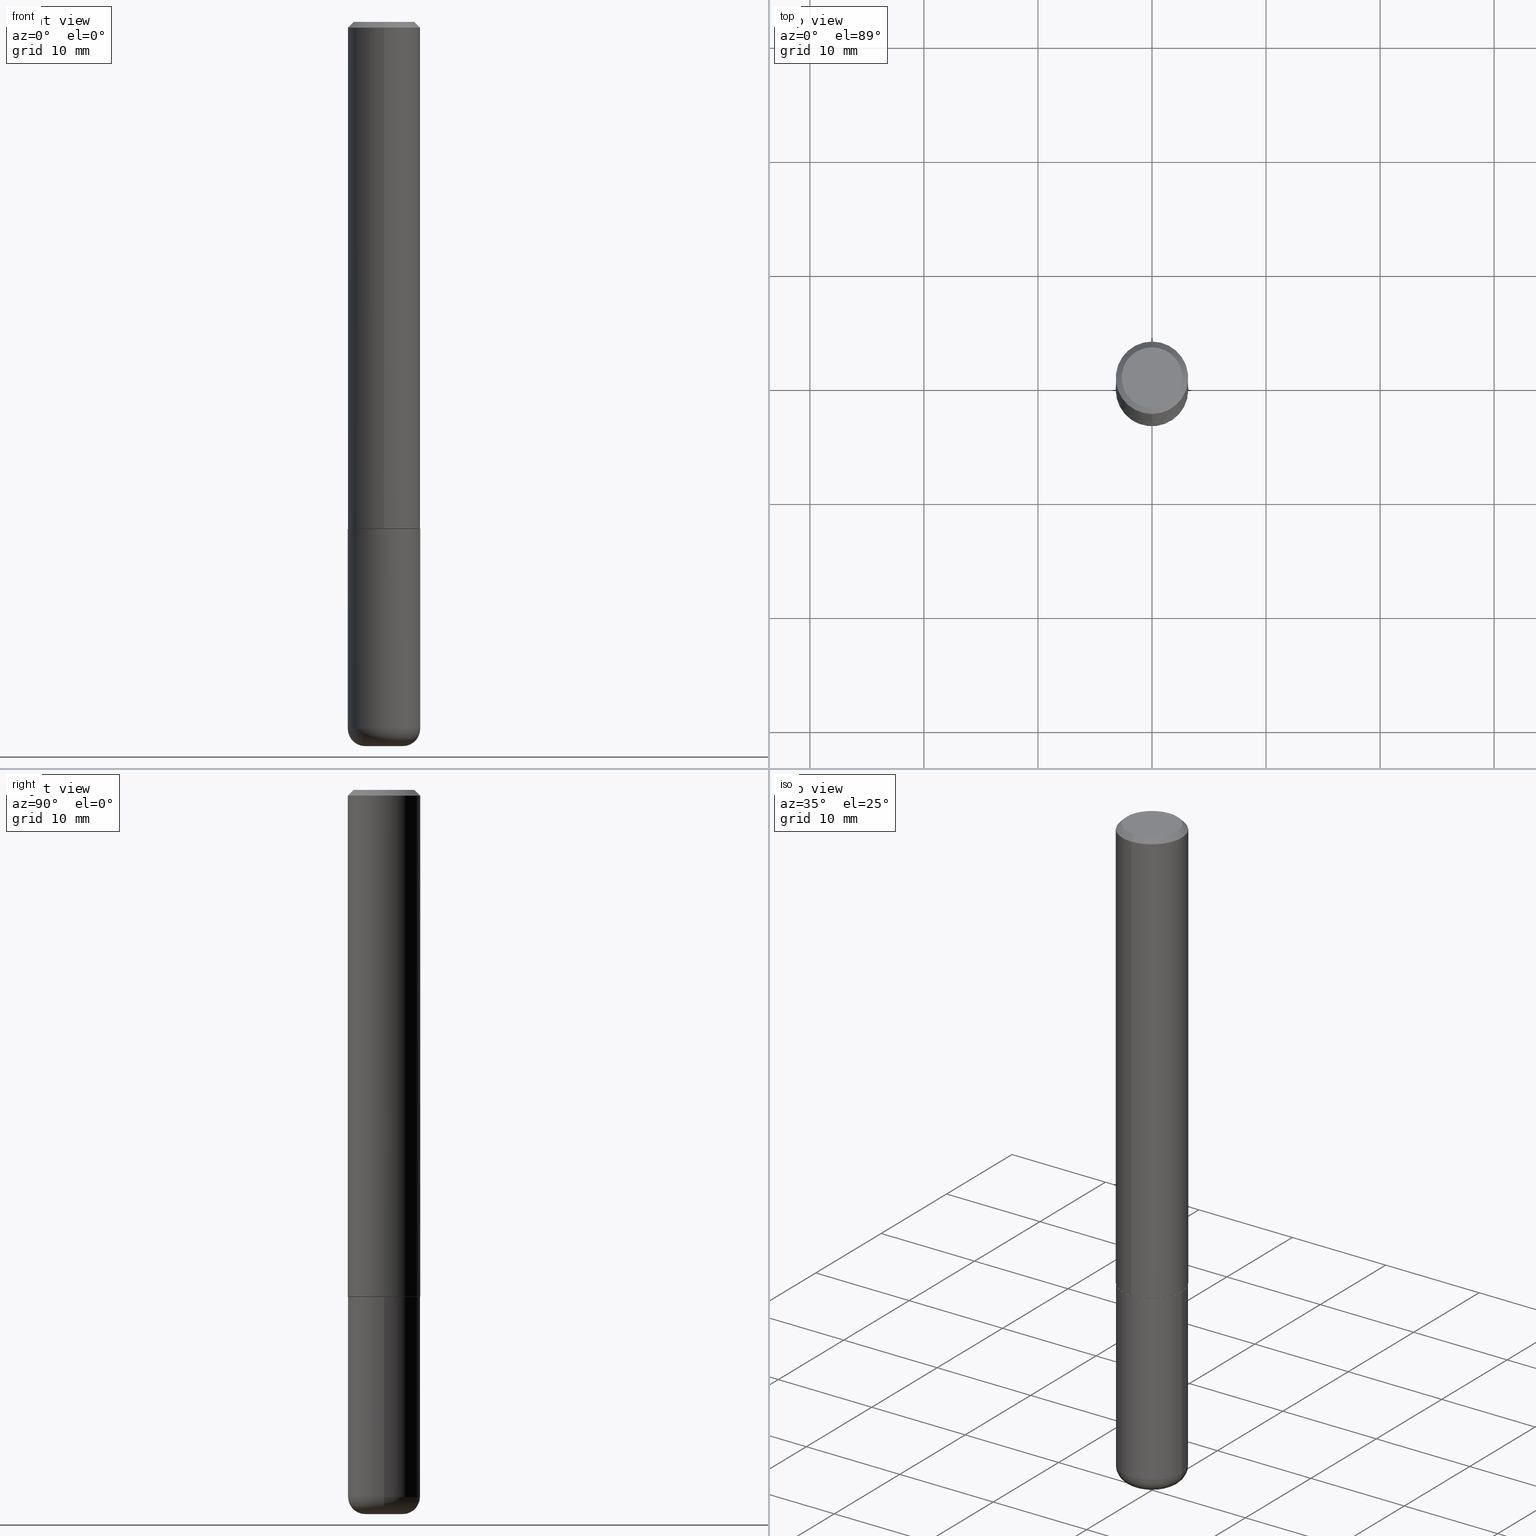
[diagram: canonical four-view strip — front | top / right | iso, engineering-drawing reading convention]
A machine part, canonical four-view strip (front | top / right | iso — engineering-drawing reading convention). The complete STEP part file that produces these views, byte-faithful:
ISO-10303-21;
HEADER;
FILE_DESCRIPTION (( 'STEP AP203' ),
    '1' );
FILE_NAME ('37439.STEP',
    '2024-03-02T01:27:23',
    ( '' ),
    ( '' ),
    'SwSTEP 2.0',
    'SolidWorks 2023',
    '' );
FILE_SCHEMA (( 'CONFIG_CONTROL_DESIGN' ));
ENDSEC;

DATA;
#1 = CC_DESIGN_SECURITY_CLASSIFICATION ( #166, ( #311 ) ) ;
#2 = APPROVAL_DATE_TIME ( #203, #232 ) ;
#3 = EDGE_LOOP ( 'NONE', ( #90, #101 ) ) ;
#4 = CARTESIAN_POINT ( 'NONE',  ( 8.728703347107837333E-16, 0.1249999999999999306, -0.02000000000000046185 ) ) ;
#5 = ORIENTED_EDGE ( 'NONE', *, *, #416, .F. ) ;
#6 = AXIS2_PLACEMENT_3D ( 'NONE', #208, #298, #14 ) ;
#7 = DESIGN_CONTEXT ( 'detailed design', #227, 'design' ) ;
#8 = ORIENTED_EDGE ( 'NONE', *, *, #204, .F. ) ;
#9 = CC_DESIGN_DATE_AND_TIME_ASSIGNMENT ( #163, #389, ( #397 ) ) ;
#10 = EDGE_LOOP ( 'NONE', ( #175, #266, #393, #371 ) ) ;
#11 = CYLINDRICAL_SURFACE ( 'NONE', #118, 0.1250000000000000000 ) ;
#12 = DATE_TIME_ROLE ( 'classification_date' ) ;
#13 = CLOSED_SHELL ( 'NONE', ( #137, #352, #299, #178, #286, #368 ) ) ;
#14 = DIRECTION ( 'NONE',  ( 1.000000000000000000, -6.982962677686266711E-15, 4.876176775795935793E-29 ) ) ;
#15 = EDGE_CURVE ( 'NONE', #398, #26, #152, .T. ) ;
#16 = DIRECTION ( 'NONE',  ( -2.444769625519019670E-29, 3.492482605351917386E-15, 1.000000000000000000 ) ) ;
#17 = CARTESIAN_POINT ( 'NONE',  ( 8.881784197001479121E-16, 0.1249999999999941019, -1.749000000000000332 ) ) ;
#18 = ORIENTED_EDGE ( 'NONE', *, *, #115, .F. ) ;
#19 = DIRECTION ( 'NONE',  ( 2.444769625519019109E-29, -3.492482605351917386E-15, -1.000000000000000000 ) ) ;
#20 = CIRCLE ( 'NONE', #353, 0.1239999999999999991 ) ;
#21 = CARTESIAN_POINT ( 'NONE',  ( 4.889539251038044560E-31, -6.984965210703842315E-17, -0.02000000000000002470 ) ) ;
#22 = DIRECTION ( 'NONE',  ( 1.000000000000000000, -6.982962677686262766E-15, 0.000000000000000000 ) ) ;
#23 = CARTESIAN_POINT ( 'NONE',  ( 6.113672015462842613E-29, -8.728703347107864943E-15, -2.500000000000000000 ) ) ;
#24 = CYLINDRICAL_SURFACE ( 'NONE', #205, 0.1250000000000001110 ) ;
#25 = CARTESIAN_POINT ( 'NONE',  ( 4.279570410823989044E-29, -6.110092342975505460E-15, -1.750000000000000222 ) ) ;
#26 = VERTEX_POINT ( 'NONE', #93 ) ;
#27 = AXIS2_PLACEMENT_3D ( 'NONE', #289, #122, #192 ) ;
#28 = DIRECTION ( 'NONE',  ( 2.444769625519019670E-29, -3.492482605351917386E-15, -1.000000000000000000 ) ) ;
#29 = COORDINATED_UNIVERSAL_TIME_OFFSET ( 5, 0, .BEHIND. ) ;
#30 = UNCERTAINTY_MEASURE_WITH_UNIT (LENGTH_MEASURE( 1.000000000000000082E-05 ), #349, 'distance_accuracy_value', 'NONE');
#31 = DIRECTION ( 'NONE',  ( -1.000000000000000000, 6.982962677686265922E-15, -4.876176775795935793E-29 ) ) ;
#32 = EDGE_CURVE ( 'NONE', #219, #47, #387, .T. ) ;
#33 = ORIENTED_EDGE ( 'NONE', *, *, #204, .T. ) ;
#34 = CALENDAR_DATE ( 2024, 1, 3 ) ;
#35 = DIRECTION ( 'NONE',  ( 5.024295867788490741E-15, 0.7071067811866103003, 0.7071067811864847341 ) ) ;
#36 = EDGE_LOOP ( 'NONE', ( #300, #112, #126, #18 ) ) ;
#37 = ADVANCED_FACE ( 'NONE', ( #225 ), #255, .F. ) ;
#38 = ORIENTED_EDGE ( 'NONE', *, *, #71, .T. ) ;
#39 = TOROIDAL_SURFACE ( 'NONE', #277, 0.06500000000000000222, 0.05999999999999995615 ) ;
#40 = EDGE_LOOP ( 'NONE', ( #141, #324, #123, #69 ) ) ;
#41 = CC_DESIGN_PERSON_AND_ORGANIZATION_ASSIGNMENT ( #189, #88, ( #239 ) ) ;
#42 = DIRECTION ( 'NONE',  ( -2.444769625519019670E-29, 3.492482605351917386E-15, 1.000000000000000000 ) ) ;
#43 = VECTOR ( 'NONE', #400, 39.37007874015748143 ) ;
#44 = CARTESIAN_POINT ( 'NONE',  ( 4.278346844658283722E-29, -6.111844559365854735E-15, -1.750000000000000000 ) ) ;
#45 = APPROVAL_PERSON_ORGANIZATION ( #146, #100, #131 ) ;
#46 = CARTESIAN_POINT ( 'NONE',  ( 0.1250000000000000000, -8.728703347107833388E-16, 6.095220969744919741E-30 ) ) ;
#47 = VERTEX_POINT ( 'NONE', #57 ) ;
#48 = EDGE_CURVE ( 'NONE', #296, #106, #80, .T. ) ;
#49 = CARTESIAN_POINT ( 'NONE',  ( 0.06500000000000000222, -8.973107040826881753E-15, -2.440000000000000391 ) ) ;
#50 = DIRECTION ( 'NONE',  ( 1.000000000000000000, -6.982962677686262766E-15, 0.000000000000000000 ) ) ;
#51 = DIMENSIONAL_EXPONENTS ( 1.000000000000000000, 0.000000000000000000, 0.000000000000000000, 0.000000000000000000, 0.000000000000000000, 0.000000000000000000, 0.000000000000000000 ) ;
#52 = PLANE ( 'NONE',  #330 ) ;
#53 = AXIS2_PLACEMENT_3D ( 'NONE', #342, #181, #77 ) ;
#54 = AXIS2_PLACEMENT_3D ( 'NONE', #258, #384, #230 ) ;
#55 = CARTESIAN_POINT ( 'NONE',  ( 4.889539251038044560E-31, -6.984965210703842315E-17, -0.02000000000000002470 ) ) ;
#56 = COORDINATED_UNIVERSAL_TIME_OFFSET ( 5, 0, .BEHIND. ) ;
#57 = CARTESIAN_POINT ( 'NONE',  ( 0.1249999999999999861, -9.392084801488058387E-15, -2.440000000000000391 ) ) ;
#58 = EDGE_CURVE ( 'NONE', #394, #263, #174, .T. ) ;
#59 = ORIENTED_EDGE ( 'NONE', *, *, #84, .T. ) ;
#60 = DIRECTION ( 'NONE',  ( 2.438088387897960049E-29, -3.491481338843145188E-15, -1.000000000000000000 ) ) ;
#61 = AXIS2_PLACEMENT_3D ( 'NONE', #116, #19, #153 ) ;
#62 = CALENDAR_DATE ( 2024, 1, 3 ) ;
#63 = EDGE_CURVE ( 'NONE', #296, #219, #418, .T. ) ;
#64 = CC_DESIGN_APPROVAL ( #100, ( #166 ) ) ;
#65 = ORIENTED_EDGE ( 'NONE', *, *, #274, .F. ) ;
#66 = PERSON_AND_ORGANIZATION_ROLE ( 'classification_officer' ) ;
#67 = DIRECTION ( 'NONE',  ( -2.444769625519019670E-29, 3.492482605351917386E-15, 1.000000000000000000 ) ) ;
#68 = DIRECTION ( 'NONE',  ( -2.444769625519019670E-29, 3.492482605351917386E-15, 1.000000000000000000 ) ) ;
#69 = ORIENTED_EDGE ( 'NONE', *, *, #322, .F. ) ;
#70 =( LENGTH_UNIT ( ) NAMED_UNIT ( * ) SI_UNIT ( $, .METRE. ) );
#71 = EDGE_CURVE ( 'NONE', #219, #374, #350, .T. ) ;
#72 = ORIENTED_EDGE ( 'NONE', *, *, #15, .F. ) ;
#73 = EDGE_LOOP ( 'NONE', ( #173, #360, #65, #281 ) ) ;
#74 = AXIS2_PLACEMENT_3D ( 'NONE', #49, #269, #247 ) ;
#75 = DIRECTION ( 'NONE',  ( 1.000000000000000000, -6.982962677686266711E-15, 4.876176775795935793E-29 ) ) ;
#76 = LENGTH_MEASURE_WITH_UNIT ( LENGTH_MEASURE( 0.02539999999999999897 ), #70 );
#77 = DIRECTION ( 'NONE',  ( 1.000000000000000000, -6.982962677686273810E-15, 0.000000000000000000 ) ) ;
#78 = PERSON ( 'UNSPECIFIED', 'UNSPECIFIED', 'UNSPECIFIED', ('UNSPECIFIED'), ('UNSPECIFIED'), ('UNSPECIFIED') ) ;
#79 = APPROVAL_STATUS ( 'not_yet_approved' ) ;
#80 = CIRCLE ( 'NONE', #406, 0.06500000000000000222 ) ;
#81 = DIRECTION ( 'NONE',  ( -6.982962677686265922E-15, -1.000000000000000000, 4.406206441393973340E-15 ) ) ;
#82 = TOROIDAL_SURFACE ( 'NONE', #54, 0.06500000000000000222, 0.05999999999999995615 ) ;
#83 = FACE_OUTER_BOUND ( 'NONE', #40, .T. ) ;
#84 = EDGE_CURVE ( 'NONE', #26, #398, #234, .T. ) ;
#85 = ORIENTED_EDGE ( 'NONE', *, *, #169, .F. ) ;
#86 = DIRECTION ( 'NONE',  ( -2.444769625519019670E-29, 3.492482605351917386E-15, 1.000000000000000000 ) ) ;
#87 = CALENDAR_DATE ( 2024, 1, 3 ) ;
#88 = PERSON_AND_ORGANIZATION_ROLE ( 'design_owner' ) ;
#89 = CIRCLE ( 'NONE', #144, 0.1250000000000000000 ) ;
#90 = ORIENTED_EDGE ( 'NONE', *, *, #148, .F. ) ;
#91 = ADVANCED_FACE ( 'NONE', ( #250 ), #24, .T. ) ;
#92 = APPROVAL_STATUS ( 'not_yet_approved' ) ;
#93 = CARTESIAN_POINT ( 'NONE',  ( -8.575622497214408537E-16, -0.1250000000000000555, -0.01999999999999959102 ) ) ;
#94 = LINE ( 'NONE', #199, #364 ) ;
#95 = CARTESIAN_POINT ( 'NONE',  ( 4.279570410823989044E-29, -6.110092342975505460E-15, -1.750000000000000222 ) ) ;
#96 = ADVANCED_FACE ( 'NONE', ( #130 ), #111, .T. ) ;
#97 = AXIS2_PLACEMENT_3D ( 'NONE', #335, #16, #280 ) ;
#98 = CIRCLE ( 'NONE', #235, 0.1250000000000000000 ) ;
#99 = APPROVAL_STATUS ( 'not_yet_approved' ) ;
#100 = APPROVAL ( #79, 'UNSPECIFIED' ) ;
#101 = ORIENTED_EDGE ( 'NONE', *, *, #176, .F. ) ;
#102 = PERSON_AND_ORGANIZATION ( #78, #113 ) ;
#103 = CARTESIAN_POINT ( 'NONE',  ( 8.881784197001260212E-16, 0.1250000000000001110, -4.365603256689900677E-16 ) ) ;
#104 = CYLINDRICAL_SURFACE ( 'NONE', #6, 0.1250000000000000000 ) ;
#105 = CIRCLE ( 'NONE', #74, 0.05999999999999996309 ) ;
#106 = VERTEX_POINT ( 'NONE', #411 ) ;
#107 = CALENDAR_DATE ( 2024, 1, 3 ) ;
#108 = CARTESIAN_POINT ( 'NONE',  ( -7.889572697437263111E-16, -0.1050000000000001210, 2.643715067829629270E-16 ) ) ;
#109 = ORIENTED_EDGE ( 'NONE', *, *, #202, .F. ) ;
#110 = EDGE_LOOP ( 'NONE', ( #260, #139 ) ) ;
#111 = CONICAL_SURFACE ( 'NONE', #363, 0.1239999999999999991, 0.7853981633975336552 ) ;
#112 = ORIENTED_EDGE ( 'NONE', *, *, #381, .T. ) ;
#113 = ORGANIZATION ( 'UNSPECIFIED', 'UNSPECIFIED', '' ) ;
#114 = DIRECTION ( 'NONE',  ( -2.444769625519019670E-29, 3.492482605351917386E-15, 1.000000000000000000 ) ) ;
#115 = EDGE_CURVE ( 'NONE', #333, #26, #142, .T. ) ;
#116 = CARTESIAN_POINT ( 'NONE',  ( 7.332110811570587146E-16, 0.1050000000000001210, -4.178802569514461450E-16 ) ) ;
#117 = DIRECTION ( 'NONE',  ( -2.444769625519019670E-29, 3.492482605351917386E-15, 1.000000000000000000 ) ) ;
#118 = AXIS2_PLACEMENT_3D ( 'NONE', #358, #403, #75 ) ;
#119 = CC_DESIGN_PERSON_AND_ORGANIZATION_ASSIGNMENT ( #414, #207, ( #397 ) ) ;
#120 = DIRECTION ( 'NONE',  ( -4.937700262164969294E-15, -0.7071067811866054154, 0.7071067811864896191 ) ) ;
#121 = DIRECTION ( 'NONE',  ( -6.982962677686265133E-15, -1.000000000000000000, 3.492482605351917386E-15 ) ) ;
#122 = DIRECTION ( 'NONE',  ( 2.444769625519019670E-29, -3.492482605351917386E-15, -1.000000000000000000 ) ) ;
#123 = ORIENTED_EDGE ( 'NONE', *, *, #262, .T. ) ;
#124 = APPLICATION_PROTOCOL_DEFINITION ( 'international standard', 'config_control_design', 1994, #227 ) ;
#125 = CARTESIAN_POINT ( 'NONE',  ( 4.279570410823989044E-29, -6.110092342975505460E-15, -1.750000000000000222 ) ) ;
#126 = ORIENTED_EDGE ( 'NONE', *, *, #84, .F. ) ;
#127 = EDGE_CURVE ( 'NONE', #212, #333, #339, .T. ) ;
#128 =( NAMED_UNIT ( * ) PLANE_ANGLE_UNIT ( ) SI_UNIT ( $, .RADIAN. ) );
#129 = AXIS2_PLACEMENT_3D ( 'NONE', #372, #42, #81 ) ;
#130 = FACE_OUTER_BOUND ( 'NONE', #233, .T. ) ;
#131 = APPROVAL_ROLE ( '' ) ;
#132 = DIRECTION ( 'NONE',  ( -2.445468806185136597E-29, 3.491481338843145583E-15, 1.000000000000000000 ) ) ;
#133 = DIRECTION ( 'NONE',  ( 1.000000000000000000, -6.982962677686262766E-15, 0.000000000000000000 ) ) ;
#134 = ADVANCED_FACE ( 'NONE', ( #147 ), #188, .T. ) ;
#135 = DIRECTION ( 'NONE',  ( 0.000000000000000000, 0.000000000000000000, 1.000000000000000000 ) ) ;
#136 = PERSON_AND_ORGANIZATION ( #78, #113 ) ;
#137 = ADVANCED_FACE ( 'NONE', ( #369 ), #11, .T. ) ;
#138 = ORIENTED_EDGE ( 'NONE', *, *, #15, .T. ) ;
#139 = ORIENTED_EDGE ( 'NONE', *, *, #58, .T. ) ;
#140 = EDGE_LOOP ( 'NONE', ( #267, #38, #183, #328 ) ) ;
#141 = ORIENTED_EDGE ( 'NONE', *, *, #71, .F. ) ;
#142 = LINE ( 'NONE', #218, #43 ) ;
#143 = EDGE_CURVE ( 'NONE', #263, #394, #362, .T. ) ;
#144 = AXIS2_PLACEMENT_3D ( 'NONE', #182, #275, #376 ) ;
#145 = PLANE ( 'NONE',  #61 ) ;
#146 = PERSON_AND_ORGANIZATION ( #78, #113 ) ;
#147 = FACE_OUTER_BOUND ( 'NONE', #10, .T. ) ;
#148 = EDGE_CURVE ( 'NONE', #212, #348, #20, .T. ) ;
#149 = LINE ( 'NONE', #46, #356 ) ;
#150 = CARTESIAN_POINT ( 'NONE',  ( -0.1250000000000000000, 8.881784197001252323E-16, -6.148668862818632227E-30 ) ) ;
#151 = DATE_AND_TIME ( #87, #332 ) ;
#152 = CIRCLE ( 'NONE', #292, 0.1250000000000000000 ) ;
#153 = DIRECTION ( 'NONE',  ( 6.982962677686265922E-15, 1.000000000000000000, -3.492482605351917386E-15 ) ) ;
#154 = CIRCLE ( 'NONE', #388, 0.1250000000000000000 ) ;
#155 = DIRECTION ( 'NONE',  ( -2.444769625519019109E-29, 3.492482605351917386E-15, 1.000000000000000000 ) ) ;
#156 = CARTESIAN_POINT ( 'NONE',  ( 2.501956864421970211E-45, -3.574177598218272952E-31, -1.023391667789888407E-16 ) ) ;
#157 = FACE_OUTER_BOUND ( 'NONE', #391, .T. ) ;
#158 = PRODUCT_RELATED_PRODUCT_CATEGORY ( 'detail', '', ( #239 ) ) ;
#159 = EDGE_LOOP ( 'NONE', ( #170, #276, #268, #285 ) ) ;
#160 = DIRECTION ( 'NONE',  ( 6.982962677686265922E-15, 1.000000000000000000, -3.483106191921935554E-15 ) ) ;
#161 = AXIS2_PLACEMENT_3D ( 'NONE', #304, #273, #405 ) ;
#162 = DIRECTION ( 'NONE',  ( -2.444769625519019670E-29, 3.492482605351917386E-15, 1.000000000000000000 ) ) ;
#163 = DATE_AND_TIME ( #107, #347 ) ;
#164 = PLANE ( 'NONE',  #301 ) ;
#165 = PERSON_AND_ORGANIZATION_ROLE ( 'creator' ) ;
#166 = SECURITY_CLASSIFICATION ( '', '', #392 ) ;
#167 = COORDINATED_UNIVERSAL_TIME_OFFSET ( 5, 0, .BEHIND. ) ;
#168 = CARTESIAN_POINT ( 'NONE',  ( -0.1250000000000000000, -6.426474985176265022E-15, -1.750000000000000222 ) ) ;
#169 = EDGE_CURVE ( 'NONE', #348, #238, #367, .T. ) ;
#170 = ORIENTED_EDGE ( 'NONE', *, *, #63, .F. ) ;
#171 = DIRECTION ( 'NONE',  ( 4.937700262164541731E-15, 0.7071067811865442421, -0.7071067811865507924 ) ) ;
#172 = CARTESIAN_POINT ( 'NONE',  ( 4.278346844658283722E-29, -6.111844559365854735E-15, -1.750000000000000000 ) ) ;
#173 = ORIENTED_EDGE ( 'NONE', *, *, #202, .T. ) ;
#174 = CIRCLE ( 'NONE', #264, 0.1050000000000001210 ) ;
#175 = ORIENTED_EDGE ( 'NONE', *, *, #148, .T. ) ;
#176 = EDGE_CURVE ( 'NONE', #348, #212, #319, .T. ) ;
#177 = CARTESIAN_POINT ( 'NONE',  ( 0.1250000000000000000, -6.982962677686288010E-15, -1.750000000000000222 ) ) ;
#178 = ADVANCED_FACE ( 'NONE', ( #83 ), #104, .T. ) ;
#179 = VECTOR ( 'NONE', #35, 39.37007874015748143 ) ;
#180 =( GEOMETRIC_REPRESENTATION_CONTEXT ( 3 ) GLOBAL_UNCERTAINTY_ASSIGNED_CONTEXT ( ( #30 ) ) GLOBAL_UNIT_ASSIGNED_CONTEXT ( ( #349, #128, #378 ) ) REPRESENTATION_CONTEXT ( 'NONE', 'WORKASPACE' ) );
#181 = DIRECTION ( 'NONE',  ( -2.445468806185136597E-29, 3.491481338843145583E-15, 1.000000000000000000 ) ) ;
#182 = CARTESIAN_POINT ( 'NONE',  ( 5.966943887091733341E-29, -8.519214466777275048E-15, -2.440000000000000391 ) ) ;
#183 = ORIENTED_EDGE ( 'NONE', *, *, #337, .F. ) ;
#184 = CALENDAR_DATE ( 2024, 1, 3 ) ;
#185 = CARTESIAN_POINT ( 'NONE',  ( -8.658873720330540358E-16, -0.1240000000000061053, -1.749999999999999334 ) ) ;
#186 = DIRECTION ( 'NONE',  ( -2.445468806185136877E-29, 3.491481338843145188E-15, 1.000000000000000000 ) ) ;
#187 = AXIS2_PLACEMENT_3D ( 'NONE', #172, #68, #309 ) ;
#188 = CONICAL_SURFACE ( 'NONE', #129, 0.1239999999999999991, 0.7853981633975336552 ) ;
#189 = PERSON_AND_ORGANIZATION ( #78, #113 ) ;
#190 = DIRECTION ( 'NONE',  ( -2.445468806185136597E-29, 3.491481338843145583E-15, 1.000000000000000000 ) ) ;
#191 = DIRECTION ( 'NONE',  ( -2.444769625519019670E-29, 3.492482605351917386E-15, 1.000000000000000000 ) ) ;
#192 = DIRECTION ( 'NONE',  ( 6.982962677686265922E-15, 1.000000000000000000, -3.483106191921935554E-15 ) ) ;
#193 = DIRECTION ( 'NONE',  ( 1.000000000000000000, -6.982962677686273810E-15, 0.000000000000000000 ) ) ;
#194 = PRODUCT_DEFINITION_SHAPE ( 'NONE', 'NONE',  #397 ) ;
#195 = DATE_AND_TIME ( #184, #278 ) ;
#196 = CARTESIAN_POINT ( 'NONE',  ( 4.889539251038044560E-31, -6.984965210703842315E-17, -0.02000000000000002470 ) ) ;
#197 = EDGE_CURVE ( 'NONE', #106, #47, #105, .T. ) ;
#198 = DIRECTION ( 'NONE',  ( -2.445468806185136597E-29, 3.491481338843145583E-15, 1.000000000000000000 ) ) ;
#199 = CARTESIAN_POINT ( 'NONE',  ( -8.575622497214408537E-16, -0.1250000000000000555, -0.01999999999999959102 ) ) ;
#200 = VECTOR ( 'NONE', #120, 39.37007874015748143 ) ;
#201 = APPROVAL_PERSON_ORGANIZATION ( #256, #410, #385 ) ;
#202 = EDGE_CURVE ( 'NONE', #106, #296, #210, .T. ) ;
#203 = DATE_AND_TIME ( #62, #287 ) ;
#204 = EDGE_CURVE ( 'NONE', #238, #333, #270, .T. ) ;
#205 = AXIS2_PLACEMENT_3D ( 'NONE', #290, #86, #223 ) ;
#206 = ORIENTED_EDGE ( 'NONE', *, *, #381, .F. ) ;
#207 = PERSON_AND_ORGANIZATION_ROLE ( 'creator' ) ;
#208 = CARTESIAN_POINT ( 'NONE',  ( 0.000000000000000000, 0.000000000000000000, 0.000000000000000000 ) ) ;
#209 = VERTEX_POINT ( 'NONE', #177 ) ;
#210 = CIRCLE ( 'NONE', #53, 0.06500000000000000222 ) ;
#211 = LOCAL_TIME ( 20, 27, 23.00000000000000000, #325 ) ;
#212 = VERTEX_POINT ( 'NONE', #185 ) ;
#213 = FACE_OUTER_BOUND ( 'NONE', #110, .T. ) ;
#214 = ADVANCED_FACE ( 'NONE', ( #213 ), #145, .F. ) ;
#215 = CYLINDRICAL_SURFACE ( 'NONE', #161, 0.1250000000000001110 ) ;
#216 = CONICAL_SURFACE ( 'NONE', #27, 0.1250000000000000000, 0.7853981633974471688 ) ;
#217 = APPROVAL_PERSON_ORGANIZATION ( #395, #232, #354 ) ;
#218 = CARTESIAN_POINT ( 'NONE',  ( -8.728703347107841277E-16, -0.1250000000000001110, 4.365603256689900677E-16 ) ) ;
#219 = VERTEX_POINT ( 'NONE', #244 ) ;
#220 = DIRECTION ( 'NONE',  ( -6.982962677686265133E-15, -1.000000000000000000, 4.370956789862812472E-15 ) ) ;
#221 = DIRECTION ( 'NONE',  ( -6.982962677686265922E-15, -1.000000000000000000, 3.483106191921935554E-15 ) ) ;
#222 = CARTESIAN_POINT ( 'NONE',  ( 5.966943887091733341E-29, -8.519214466777275048E-15, -2.440000000000000391 ) ) ;
#223 = DIRECTION ( 'NONE',  ( -6.982962677686266711E-15, -1.000000000000000000, 3.492482605351917386E-15 ) ) ;
#224 = AXIS2_PLACEMENT_3D ( 'NONE', #249, #117, #307 ) ;
#225 = FACE_OUTER_BOUND ( 'NONE', #3, .T. ) ;
#226 = DIRECTION ( 'NONE',  ( -6.982962677686265922E-15, -1.000000000000000000, 4.406206441393973340E-15 ) ) ;
#227 = APPLICATION_CONTEXT ( 'configuration controlled 3d designs of mechanical parts and assemblies' ) ;
#228 = APPROVAL_DATE_TIME ( #151, #100 ) ;
#229 = DIRECTION ( 'NONE',  ( -4.851104656540957964E-15, -0.7071067811865491270, -0.7071067811865459074 ) ) ;
#230 = DIRECTION ( 'NONE',  ( 1.000000000000000000, -6.982962677686265133E-15, 4.883557194083112340E-29 ) ) ;
#231 = AXIS2_PLACEMENT_3D ( 'NONE', #196, #28, #160 ) ;
#232 = APPROVAL ( #99, 'UNSPECIFIED' ) ;
#233 = EDGE_LOOP ( 'NONE', ( #85, #359, #355, #8 ) ) ;
#234 = CIRCLE ( 'NONE', #259, 0.1250000000000000000 ) ;
#235 = AXIS2_PLACEMENT_3D ( 'NONE', #125, #132, #133 ) ;
#236 = CARTESIAN_POINT ( 'NONE',  ( -8.658873720330540358E-16, -0.1240000000000061053, -1.749999999999999334 ) ) ;
#237 = ORIENTED_EDGE ( 'NONE', *, *, #337, .T. ) ;
#238 = VERTEX_POINT ( 'NONE', #17 ) ;
#239 = PRODUCT ( '37439', '37439', '', ( #382 ) ) ;
#240 = APPLICATION_PROTOCOL_DEFINITION ( 'international standard', 'config_control_design', 1994, #302 ) ;
#241 = ORIENTED_EDGE ( 'NONE', *, *, #357, .T. ) ;
#242 = CC_DESIGN_APPROVAL ( #232, ( #311 ) ) ;
#243 = ORIENTED_EDGE ( 'NONE', *, *, #322, .T. ) ;
#244 = CARTESIAN_POINT ( 'NONE',  ( -0.1249999999999999861, -7.631036047077151393E-15, -2.440000000000000391 ) ) ;
#245 = EDGE_CURVE ( 'NONE', #333, #238, #248, .T. ) ;
#246 = DIRECTION ( 'NONE',  ( -2.444769625519019670E-29, 3.492482605351917386E-15, 1.000000000000000000 ) ) ;
#247 = DIRECTION ( 'NONE',  ( 1.000000000000000000, -6.982962677686272233E-15, 0.000000000000000000 ) ) ;
#248 = CIRCLE ( 'NONE', #97, 0.1250000000000002498 ) ;
#249 = CARTESIAN_POINT ( 'NONE',  ( 2.501956864421970211E-45, -3.574177598218272952E-31, -1.023391667789888407E-16 ) ) ;
#250 = FACE_OUTER_BOUND ( 'NONE', #383, .T. ) ;
#251 = FACE_OUTER_BOUND ( 'NONE', #343, .T. ) ;
#252 = ADVANCED_FACE ( 'NONE', ( #366 ), #215, .T. ) ;
#253 = DIRECTION ( 'NONE',  ( -6.982962677686265922E-15, -1.000000000000000000, 3.483106191921935554E-15 ) ) ;
#254 = DIRECTION ( 'NONE',  ( -1.000000000000000000, 6.982962677686265922E-15, -4.876176775795935793E-29 ) ) ;
#255 = PLANE ( 'NONE',  #399 ) ;
#256 = PERSON_AND_ORGANIZATION ( #78, #113 ) ;
#257 = DIRECTION ( 'NONE',  ( -2.444769625519019670E-29, 3.492482605351917386E-15, 1.000000000000000000 ) ) ;
#258 = CARTESIAN_POINT ( 'NONE',  ( 5.966943887091733341E-29, -8.519214466777275048E-15, -2.440000000000000391 ) ) ;
#259 = AXIS2_PLACEMENT_3D ( 'NONE', #21, #162, #253 ) ;
#260 = ORIENTED_EDGE ( 'NONE', *, *, #143, .T. ) ;
#261 = PERSON_AND_ORGANIZATION_ROLE ( 'design_supplier' ) ;
#262 = EDGE_CURVE ( 'NONE', #47, #209, #149, .T. ) ;
#263 = VERTEX_POINT ( 'NONE', #306 ) ;
#264 = AXIS2_PLACEMENT_3D ( 'NONE', #156, #316, #121 ) ;
#265 = AXIS2_PLACEMENT_3D ( 'NONE', #373, #135, #331 ) ;
#266 = ORIENTED_EDGE ( 'NONE', *, *, #169, .T. ) ;
#267 = ORIENTED_EDGE ( 'NONE', *, *, #274, .T. ) ;
#268 = ORIENTED_EDGE ( 'NONE', *, *, #197, .T. ) ;
#269 = DIRECTION ( 'NONE',  ( -6.982962677686266711E-15, -1.000000000000000000, 3.491481338843145583E-15 ) ) ;
#270 = CIRCLE ( 'NONE', #338, 0.1250000000000002498 ) ;
#271 = VECTOR ( 'NONE', #171, 39.37007874015748143 ) ;
#272 = CARTESIAN_POINT ( 'NONE',  ( 8.810729923425669213E-16, 0.1239999999999938790, -1.750000000000000444 ) ) ;
#273 = DIRECTION ( 'NONE',  ( -2.444769625519019670E-29, 3.492482605351917386E-15, 1.000000000000000000 ) ) ;
#274 = EDGE_CURVE ( 'NONE', #47, #219, #89, .T. ) ;
#275 = DIRECTION ( 'NONE',  ( -2.445468806185136597E-29, 3.491481338843145583E-15, 1.000000000000000000 ) ) ;
#276 = ORIENTED_EDGE ( 'NONE', *, *, #48, .T. ) ;
#277 = AXIS2_PLACEMENT_3D ( 'NONE', #222, #190, #345 ) ;
#278 = LOCAL_TIME ( 20, 27, 23.00000000000000000, #56 ) ;
#279 = ADVANCED_FACE ( 'NONE', ( #157 ), #216, .T. ) ;
#280 = DIRECTION ( 'NONE',  ( -6.982962677686265133E-15, -1.000000000000000000, 4.370956789862812472E-15 ) ) ;
#281 = ORIENTED_EDGE ( 'NONE', *, *, #197, .F. ) ;
#282 = MANIFOLD_SOLID_BREP ( 'Body-Move/Copy2[2]', #413 ) ;
#283 = CARTESIAN_POINT ( 'NONE',  ( 4.278346844658283722E-29, -6.111844559365854735E-15, -1.750000000000000000 ) ) ;
#284 = CARTESIAN_POINT ( 'NONE',  ( -0.06500000000000000222, -7.948943307970475008E-15, -2.500000000000000000 ) ) ;
#285 = ORIENTED_EDGE ( 'NONE', *, *, #32, .F. ) ;
#286 = ADVANCED_FACE ( 'NONE', ( #317 ), #39, .T. ) ;
#287 = LOCAL_TIME ( 20, 27, 23.00000000000000000, #167 ) ;
#288 = APPROVAL_DATE_TIME ( #195, #410 ) ;
#289 = CARTESIAN_POINT ( 'NONE',  ( 4.889539251038044560E-31, -6.984965210703842315E-17, -0.02000000000000002470 ) ) ;
#290 = CARTESIAN_POINT ( 'NONE',  ( 0.000000000000000000, 0.000000000000000000, 0.000000000000000000 ) ) ;
#291 = MANIFOLD_SOLID_BREP ( 'Body-Move/Copy2[1]', #13 ) ;
#292 = AXIS2_PLACEMENT_3D ( 'NONE', #55, #191, #221 ) ;
#293 = PERSON_AND_ORGANIZATION ( #78, #113 ) ;
#294 = CC_DESIGN_APPROVAL ( #410, ( #397 ) ) ;
#295 = LINE ( 'NONE', #103, #401 ) ;
#296 = VERTEX_POINT ( 'NONE', #284 ) ;
#297 = LINE ( 'NONE', #4, #271 ) ;
#298 = DIRECTION ( 'NONE',  ( -2.445468806185136597E-29, 3.491481338843145583E-15, 1.000000000000000000 ) ) ;
#299 = ADVANCED_FACE ( 'NONE', ( #417 ), #52, .F. ) ;
#300 = ORIENTED_EDGE ( 'NONE', *, *, #245, .T. ) ;
#301 = AXIS2_PLACEMENT_3D ( 'NONE', #408, #60, #31 ) ;
#302 = APPLICATION_CONTEXT ( 'configuration controlled 3d designs of mechanical parts and assemblies' ) ;
#303 = ORIENTED_EDGE ( 'NONE', *, *, #115, .T. ) ;
#304 = CARTESIAN_POINT ( 'NONE',  ( 0.000000000000000000, 0.000000000000000000, 0.000000000000000000 ) ) ;
#305 = ADVANCED_FACE ( 'NONE', ( #251 ), #320, .T. ) ;
#306 = CARTESIAN_POINT ( 'NONE',  ( 8.030407079339212239E-16, 0.1050000000000001210, -4.690498403409406824E-16 ) ) ;
#307 = DIRECTION ( 'NONE',  ( -6.982962677686265133E-15, -1.000000000000000000, 3.492482605351917386E-15 ) ) ;
#308 = EDGE_LOOP ( 'NONE', ( #237, #243 ) ) ;
#309 = DIRECTION ( 'NONE',  ( -6.982962677686265922E-15, -1.000000000000000000, 4.406206441393973340E-15 ) ) ;
#310 = DIRECTION ( 'NONE',  ( -1.000000000000000000, 7.105427357600995548E-15, 0.000000000000000000 ) ) ;
#311 = PRODUCT_DEFINITION_FORMATION_WITH_SPECIFIED_SOURCE ( 'ANY', '', #239, .NOT_KNOWN. ) ;
#312 = CARTESIAN_POINT ( 'NONE',  ( -8.728703347107422194E-16, -0.1250000000000063560, -1.748999999999999222 ) ) ;
#313 = CARTESIAN_POINT ( 'NONE',  ( 5.966943887091733341E-29, -8.519214466777275048E-15, -2.440000000000000391 ) ) ;
#314 = FACE_OUTER_BOUND ( 'NONE', #73, .T. ) ;
#315 = CC_DESIGN_DATE_AND_TIME_ASSIGNMENT ( #365, #12, ( #166 ) ) ;
#316 = DIRECTION ( 'NONE',  ( -2.444769625519019670E-29, 3.492482605351917386E-15, 1.000000000000000000 ) ) ;
#317 = FACE_OUTER_BOUND ( 'NONE', #159, .T. ) ;
#318 = DIRECTION ( 'NONE',  ( -6.982962677686265922E-15, -1.000000000000000000, 3.492482605351917386E-15 ) ) ;
#319 = CIRCLE ( 'NONE', #187, 0.1239999999999999991 ) ;
#320 = CONICAL_SURFACE ( 'NONE', #231, 0.1250000000000000000, 0.7853981633974471688 ) ;
#321 = DIRECTION ( 'NONE',  ( -2.445468806185136597E-29, 3.491481338843145583E-15, 1.000000000000000000 ) ) ;
#322 = EDGE_CURVE ( 'NONE', #374, #209, #98, .T. ) ;
#323 = VECTOR ( 'NONE', #186, 39.37007874015748143 ) ;
#324 = ORIENTED_EDGE ( 'NONE', *, *, #32, .T. ) ;
#325 = COORDINATED_UNIVERSAL_TIME_OFFSET ( 5, 0, .BEHIND. ) ;
#326 = CARTESIAN_POINT ( 'NONE',  ( 8.728703347107837333E-16, 0.1249999999999999306, -0.02000000000000046185 ) ) ;
#327 = DIRECTION ( 'NONE',  ( -6.982962677686265922E-15, -1.000000000000000000, 4.406206441393973340E-15 ) ) ;
#328 = ORIENTED_EDGE ( 'NONE', *, *, #262, .F. ) ;
#329 = ORIENTED_EDGE ( 'NONE', *, *, #143, .F. ) ;
#330 = AXIS2_PLACEMENT_3D ( 'NONE', #25, #415, #254 ) ;
#331 = DIRECTION ( 'NONE',  ( 1.000000000000000000, 0.000000000000000000, 0.000000000000000000 ) ) ;
#332 = LOCAL_TIME ( 20, 27, 23.00000000000000000, #375 ) ;
#333 = VERTEX_POINT ( 'NONE', #312 ) ;
#334 = CC_DESIGN_PERSON_AND_ORGANIZATION_ASSIGNMENT ( #136, #165, ( #311 ) ) ;
#335 = CARTESIAN_POINT ( 'NONE',  ( 4.275902075032765006E-29, -6.108352076760502035E-15, -1.748999999999999888 ) ) ;
#336 = DIRECTION ( 'NONE',  ( -2.445468806185136877E-29, 3.491481338843145188E-15, 1.000000000000000000 ) ) ;
#337 = EDGE_CURVE ( 'NONE', #209, #374, #154, .T. ) ;
#338 = AXIS2_PLACEMENT_3D ( 'NONE', #402, #114, #220 ) ;
#339 = LINE ( 'NONE', #236, #200 ) ;
#340 = CC_DESIGN_PERSON_AND_ORGANIZATION_ASSIGNMENT ( #293, #261, ( #311 ) ) ;
#341 = ORIENTED_EDGE ( 'NONE', *, *, #416, .T. ) ;
#342 = CARTESIAN_POINT ( 'NONE',  ( 6.113672015462842613E-29, -8.728703347107864943E-15, -2.500000000000000000 ) ) ;
#343 = EDGE_LOOP ( 'NONE', ( #407, #329, #341, #138 ) ) ;
#344 = SHAPE_DEFINITION_REPRESENTATION ( #194, #404 ) ;
#345 = DIRECTION ( 'NONE',  ( 1.000000000000000000, -6.982962677686265133E-15, 4.883557194083112340E-29 ) ) ;
#346 = ORIENTED_EDGE ( 'NONE', *, *, #48, .F. ) ;
#347 = LOCAL_TIME ( 20, 27, 23.00000000000000000, #29 ) ;
#348 = VERTEX_POINT ( 'NONE', #386 ) ;
#349 =( CONVERSION_BASED_UNIT ( 'INCH', #76 ) LENGTH_UNIT ( ) NAMED_UNIT ( #51 ) );
#350 = LINE ( 'NONE', #150, #323 ) ;
#351 = FACE_OUTER_BOUND ( 'NONE', #361, .T. ) ;
#352 = ADVANCED_FACE ( 'NONE', ( #314 ), #82, .T. ) ;
#353 = AXIS2_PLACEMENT_3D ( 'NONE', #44, #246, #327 ) ;
#354 = APPROVAL_ROLE ( '' ) ;
#355 = ORIENTED_EDGE ( 'NONE', *, *, #127, .T. ) ;
#356 = VECTOR ( 'NONE', #336, 39.37007874015748143 ) ;
#357 = EDGE_CURVE ( 'NONE', #394, #26, #94, .T. ) ;
#358 = CARTESIAN_POINT ( 'NONE',  ( 0.000000000000000000, 0.000000000000000000, 0.000000000000000000 ) ) ;
#359 = ORIENTED_EDGE ( 'NONE', *, *, #176, .T. ) ;
#360 = ORIENTED_EDGE ( 'NONE', *, *, #63, .T. ) ;
#361 = EDGE_LOOP ( 'NONE', ( #109, #346 ) ) ;
#362 = CIRCLE ( 'NONE', #224, 0.1050000000000001210 ) ;
#363 = AXIS2_PLACEMENT_3D ( 'NONE', #283, #257, #226 ) ;
#364 = VECTOR ( 'NONE', #229, 39.37007874015748143 ) ;
#365 = DATE_AND_TIME ( #34, #211 ) ;
#366 = FACE_OUTER_BOUND ( 'NONE', #36, .T. ) ;
#367 = LINE ( 'NONE', #272, #179 ) ;
#368 = ADVANCED_FACE ( 'NONE', ( #351 ), #164, .T. ) ;
#369 = FACE_OUTER_BOUND ( 'NONE', #140, .T. ) ;
#370 = AXIS2_PLACEMENT_3D ( 'NONE', #409, #377, #310 ) ;
#371 = ORIENTED_EDGE ( 'NONE', *, *, #127, .F. ) ;
#372 = CARTESIAN_POINT ( 'NONE',  ( 4.278346844658283722E-29, -6.111844559365854735E-15, -1.750000000000000000 ) ) ;
#373 = CARTESIAN_POINT ( 'NONE',  ( 0.000000000000000000, 0.000000000000000000, 0.000000000000000000 ) ) ;
#374 = VERTEX_POINT ( 'NONE', #168 ) ;
#375 = COORDINATED_UNIVERSAL_TIME_OFFSET ( 5, 0, .BEHIND. ) ;
#376 = DIRECTION ( 'NONE',  ( 1.000000000000000000, -6.982962677686262766E-15, 0.000000000000000000 ) ) ;
#377 = DIRECTION ( 'NONE',  ( 7.105427357601001859E-15, 1.000000000000000000, -3.491481338843145583E-15 ) ) ;
#378 =( NAMED_UNIT ( * ) SI_UNIT ( $, .STERADIAN. ) SOLID_ANGLE_UNIT ( ) );
#379 = CARTESIAN_POINT ( 'NONE',  ( 4.278346844658284843E-29, -6.111844559365856313E-15, -1.750000000000000222 ) ) ;
#380 = AXIS2_PLACEMENT_3D ( 'NONE', #313, #198, #50 ) ;
#381 = EDGE_CURVE ( 'NONE', #238, #398, #295, .T. ) ;
#382 = MECHANICAL_CONTEXT ( 'NONE', #302, 'mechanical' ) ;
#383 = EDGE_LOOP ( 'NONE', ( #206, #33, #303, #72 ) ) ;
#384 = DIRECTION ( 'NONE',  ( -2.445468806185136597E-29, 3.491481338843145583E-15, 1.000000000000000000 ) ) ;
#385 = APPROVAL_ROLE ( '' ) ;
#386 = CARTESIAN_POINT ( 'NONE',  ( 8.846257060213681156E-16, 0.1239999999999938790, -1.750000000000000444 ) ) ;
#387 = CIRCLE ( 'NONE', #380, 0.1250000000000000000 ) ;
#388 = AXIS2_PLACEMENT_3D ( 'NONE', #95, #321, #22 ) ;
#389 = DATE_TIME_ROLE ( 'creation_date' ) ;
#390 = CC_DESIGN_PERSON_AND_ORGANIZATION_ASSIGNMENT ( #102, #66, ( #166 ) ) ;
#391 = EDGE_LOOP ( 'NONE', ( #396, #241, #59, #5 ) ) ;
#392 = SECURITY_CLASSIFICATION_LEVEL ( 'unclassified' ) ;
#393 = ORIENTED_EDGE ( 'NONE', *, *, #245, .F. ) ;
#394 = VERTEX_POINT ( 'NONE', #108 ) ;
#395 = PERSON_AND_ORGANIZATION ( #78, #113 ) ;
#396 = ORIENTED_EDGE ( 'NONE', *, *, #58, .F. ) ;
#397 = PRODUCT_DEFINITION ( 'UNKNOWN', '', #311, #7 ) ;
#398 = VERTEX_POINT ( 'NONE', #326 ) ;
#399 = AXIS2_PLACEMENT_3D ( 'NONE', #379, #155, #318 ) ;
#400 = DIRECTION ( 'NONE',  ( -2.444769625519019670E-29, 3.492482605351917386E-15, 1.000000000000000000 ) ) ;
#401 = VECTOR ( 'NONE', #67, 39.37007874015748143 ) ;
#402 = CARTESIAN_POINT ( 'NONE',  ( 4.275902075032765006E-29, -6.108352076760502035E-15, -1.748999999999999888 ) ) ;
#403 = DIRECTION ( 'NONE',  ( -2.445468806185136597E-29, 3.491481338843145583E-15, 1.000000000000000000 ) ) ;
#404 = ADVANCED_BREP_SHAPE_REPRESENTATION ( '37439', ( #291, #282, #265 ), #180 ) ;
#405 = DIRECTION ( 'NONE',  ( -6.982962677686266711E-15, -1.000000000000000000, 3.492482605351917386E-15 ) ) ;
#406 = AXIS2_PLACEMENT_3D ( 'NONE', #23, #412, #193 ) ;
#407 = ORIENTED_EDGE ( 'NONE', *, *, #357, .F. ) ;
#408 = CARTESIAN_POINT ( 'NONE',  ( 6.113672015462842613E-29, -8.728703347107864943E-15, -2.500000000000000000 ) ) ;
#409 = CARTESIAN_POINT ( 'NONE',  ( -0.06500000000000000222, -8.057361688533210306E-15, -2.440000000000000391 ) ) ;
#410 = APPROVAL ( #92, 'UNSPECIFIED' ) ;
#411 = CARTESIAN_POINT ( 'NONE',  ( 0.06500000000000000222, -9.182595921157471648E-15, -2.500000000000000000 ) ) ;
#412 = DIRECTION ( 'NONE',  ( -2.445468806185136597E-29, 3.491481338843145583E-15, 1.000000000000000000 ) ) ;
#413 = CLOSED_SHELL ( 'NONE', ( #134, #252, #279, #305, #91, #96, #37, #214 ) ) ;
#414 = PERSON_AND_ORGANIZATION ( #78, #113 ) ;
#415 = DIRECTION ( 'NONE',  ( 2.438088387897960049E-29, -3.491481338843145188E-15, -1.000000000000000000 ) ) ;
#416 = EDGE_CURVE ( 'NONE', #263, #398, #297, .T. ) ;
#417 = FACE_OUTER_BOUND ( 'NONE', #308, .T. ) ;
#418 = CIRCLE ( 'NONE', #370, 0.05999999999999996309 ) ;
ENDSEC;
END-ISO-10303-21;
